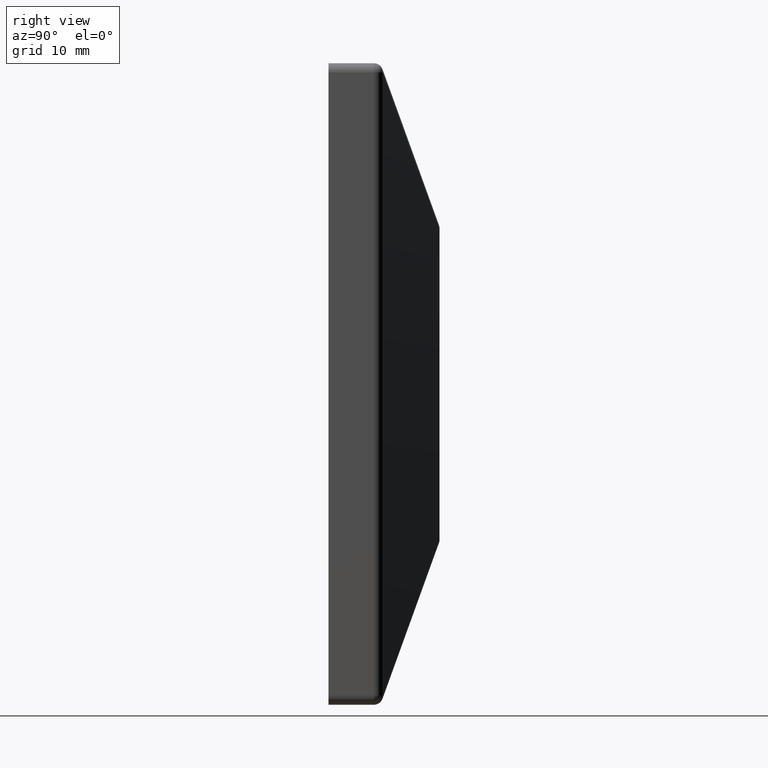
[diagram: clean part render]
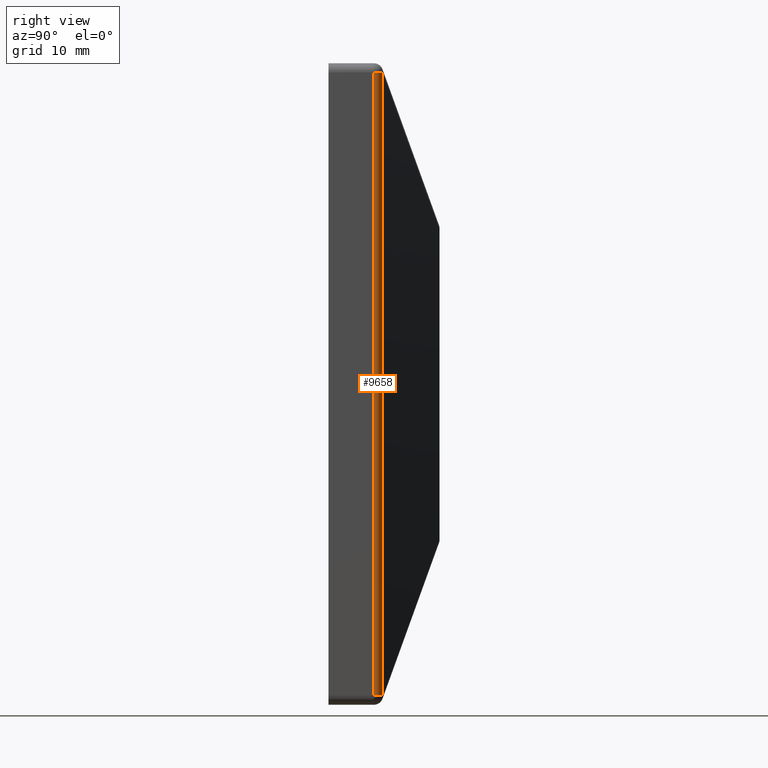
[diagram: same view with one face highlighted and labeled with its STEP entity id]
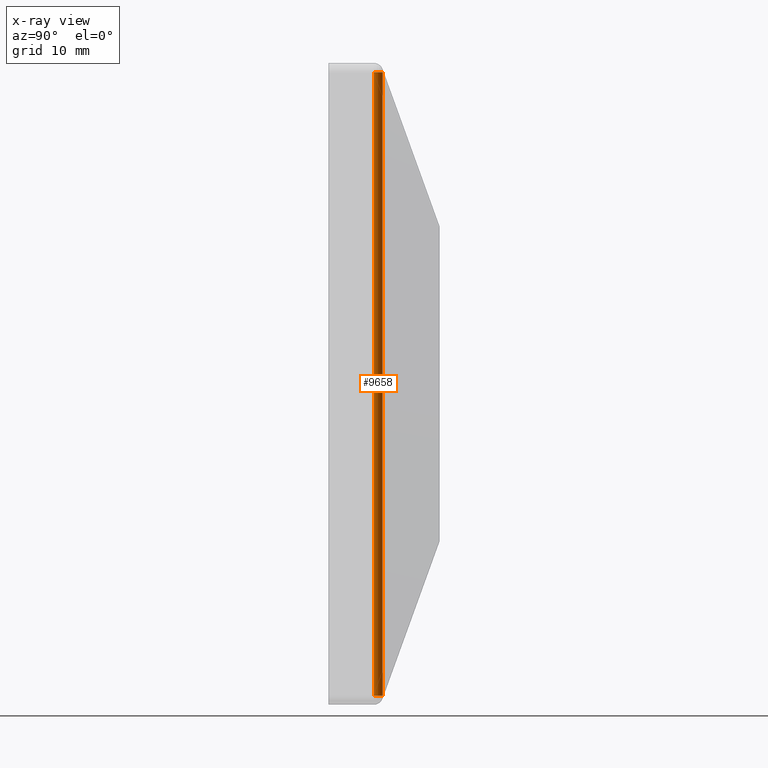
[diagram: x-ray of the same camera — body ghosted, the highlighted face saturated]
A machine part, right view. The second image highlights one B-rep face of the part: STEP entity #9658.
The next image is the same camera in x-ray: the body ghosted, the highlighted face saturated — about 0% of this face is hidden behind the body in this view.
In plain terms, the highlighted cylindrical surface (edge-blend (fillet) strip) has radius 1.5 mm, axis along (-0, -0, 1).
Its self-contained STEP definition (entity closure, byte-faithful):
#28 = AXIS2_PLACEMENT_3D ( 'NONE', #9881, #5295, #5508 ) ;
#535 = EDGE_LOOP ( 'NONE', ( #6969, #626, #14070, #13078 ) ) ;
#626 = ORIENTED_EDGE ( 'NONE', *, *, #9951, .T. ) ;
#992 = AXIS2_PLACEMENT_3D ( 'NONE', #13110, #1981, #6478 ) ;
#1465 = CIRCLE ( 'NONE', #28, 1.500000000000001332 ) ;
#1610 = EDGE_CURVE ( 'NONE', #3018, #7609, #6924, .T. ) ;
#1732 = VERTEX_POINT ( 'NONE', #10351 ) ;
#1981 = DIRECTION ( 'NONE',  ( 0.000000000000000000, 0.000000000000000000, -1.000000000000000000 ) ) ;
#2779 = DIRECTION ( 'NONE',  ( -0.000000000000000000, -0.000000000000000000, 1.000000000000000000 ) ) ;
#2799 = VERTEX_POINT ( 'NONE', #10900 ) ;
#3018 = VERTEX_POINT ( 'NONE', #6155 ) ;
#3200 = CIRCLE ( 'NONE', #992, 1.500000000000001332 ) ;
#3992 = VECTOR ( 'NONE', #6880, 1000.000000000000000 ) ;
#5107 = LINE ( 'NONE', #12264, #13588 ) ;
#5295 = DIRECTION ( 'NONE',  ( -0.000000000000000000, -0.000000000000000000, 1.000000000000000000 ) ) ;
#5508 = DIRECTION ( 'NONE',  ( 1.000000000000000000, 0.000000000000000000, 0.000000000000000000 ) ) ;
#5642 = CYLINDRICAL_SURFACE ( 'NONE', #11062, 1.500000000000001332 ) ;
#6122 = EDGE_CURVE ( 'NONE', #7609, #1732, #3200, .T. ) ;
#6155 = CARTESIAN_POINT ( 'NONE',  ( 26.00660848451862606, 8.761859710953519453, -50.50000000000001421 ) ) ;
#6273 = CARTESIAN_POINT ( 'NONE',  ( 25.50000000000001066, 7.350000000000001421, -51.99999999999998579 ) ) ;
#6478 = DIRECTION ( 'NONE',  ( 1.000000000000000000, 1.734723475976805517E-15, 0.000000000000000000 ) ) ;
#6833 = CARTESIAN_POINT ( 'NONE',  ( 26.00660848451862606, 8.761859710953519453, -51.99999999999998579 ) ) ;
#6880 = DIRECTION ( 'NONE',  ( -0.000000000000000000, -0.000000000000000000, 1.000000000000000000 ) ) ;
#6924 = LINE ( 'NONE', #6833, #3992 ) ;
#6969 = ORIENTED_EDGE ( 'NONE', *, *, #7645, .F. ) ;
#7609 = VERTEX_POINT ( 'NONE', #12065 ) ;
#7645 = EDGE_CURVE ( 'NONE', #2799, #1732, #5107, .T. ) ;
#9658 = ADVANCED_FACE ( 'NONE', ( #11857 ), #5642, .T. ) ;
#9881 = CARTESIAN_POINT ( 'NONE',  ( 25.50000000000001066, 7.350000000000001421, -50.50000000000001421 ) ) ;
#9951 = EDGE_CURVE ( 'NONE', #2799, #3018, #1465, .T. ) ;
#10351 = CARTESIAN_POINT ( 'NONE',  ( 27.00000000000001421, 7.350000000000001421, 50.50000000000000711 ) ) ;
#10900 = CARTESIAN_POINT ( 'NONE',  ( 27.00000000000001421, 7.350000000000001421, -50.49999999999998579 ) ) ;
#11062 = AXIS2_PLACEMENT_3D ( 'NONE', #6273, #2779, #12037 ) ;
#11857 = FACE_OUTER_BOUND ( 'NONE', #535, .T. ) ;
#12037 = DIRECTION ( 'NONE',  ( 1.000000000000000000, 0.000000000000000000, 0.000000000000000000 ) ) ;
#12065 = CARTESIAN_POINT ( 'NONE',  ( 26.00660848451862606, 8.761859710953519453, 50.50000000000000711 ) ) ;
#12264 = CARTESIAN_POINT ( 'NONE',  ( 27.00000000000001421, 7.350000000000001421, -51.99999999999998579 ) ) ;
#12307 = DIRECTION ( 'NONE',  ( -0.000000000000000000, -0.000000000000000000, 1.000000000000000000 ) ) ;
#13078 = ORIENTED_EDGE ( 'NONE', *, *, #6122, .T. ) ;
#13110 = CARTESIAN_POINT ( 'NONE',  ( 25.50000000000001066, 7.350000000000001421, 50.50000000000002132 ) ) ;
#13588 = VECTOR ( 'NONE', #12307, 1000.000000000000000 ) ;
#14070 = ORIENTED_EDGE ( 'NONE', *, *, #1610, .T. ) ;